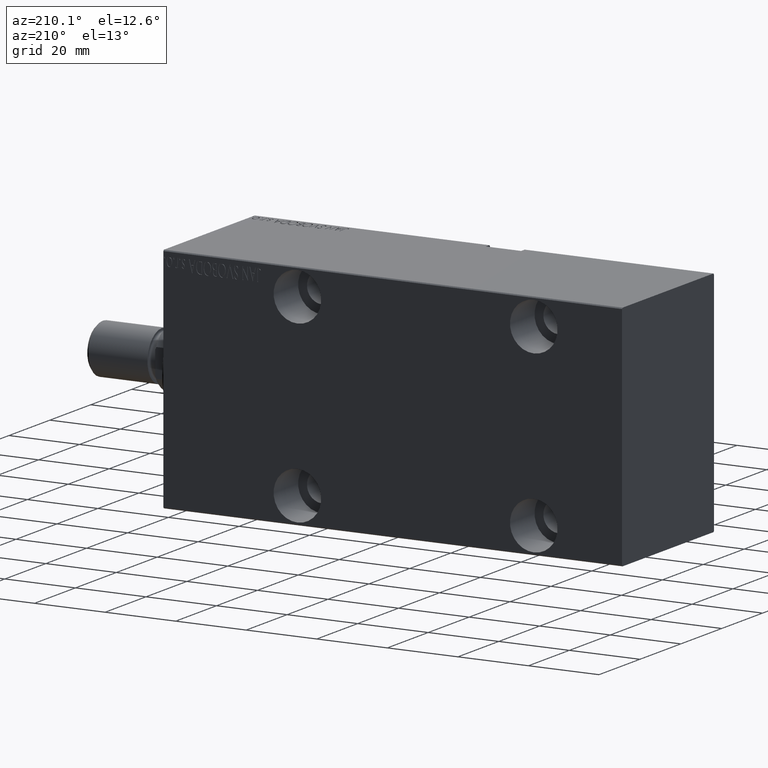
[diagram: clean part render]
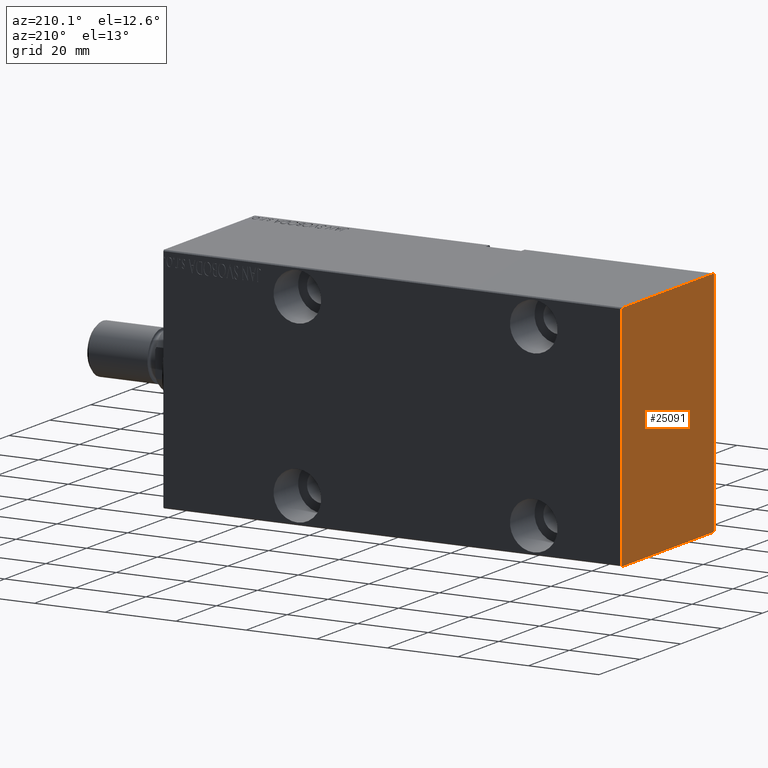
[diagram: same view with one face highlighted and labeled with its STEP entity id]
A machine part, auxiliary view. The second image highlights one B-rep face of the part: STEP entity #25091.
In plain terms, the highlighted planar face has unit normal (-1, 0, 0).
Its self-contained STEP definition (entity closure, byte-faithful):
#734 = CARTESIAN_POINT ( 'NONE',  ( 130.0000000000000000, 27.34999999999999432, -27.34999999999999432 ) ) ;
#1529 = VERTEX_POINT ( 'NONE', #42149 ) ;
#1567 = CARTESIAN_POINT ( 'NONE',  ( 130.0000000000000000, -27.34999999999999076, -27.34999999999999076 ) ) ;
#2037 = EDGE_CURVE ( 'NONE', #20394, #25659, #11572, .T. ) ;
#3293 = CARTESIAN_POINT ( 'NONE',  ( 130.0000000000000000, 22.50000000000000355, -32.19999999999999574 ) ) ;
#3453 = VERTEX_POINT ( 'NONE', #12329 ) ;
#3642 = CARTESIAN_POINT ( 'NONE',  ( 130.0000000000000000, 27.34999999999974207, 27.35000000000037446 ) ) ;
#4085 = LINE ( 'NONE', #3642, #35353 ) ;
#4581 = CARTESIAN_POINT ( 'NONE',  ( 130.0000000000000000, 22.49999999999999645, 32.50000000000000711 ) ) ;
#5531 = EDGE_CURVE ( 'NONE', #19428, #20394, #10973, .T. ) ;
#5740 = DIRECTION ( 'NONE',  ( 0.000000000000000000, -1.067522139062650425E-16, 1.000000000000000000 ) ) ;
#7762 = DIRECTION ( 'NONE',  ( 0.000000000000000000, 0.000000000000000000, -1.000000000000000000 ) ) ;
#7882 = LINE ( 'NONE', #4581, #25359 ) ;
#8790 = VECTOR ( 'NONE', #37013, 1000.000000000000114 ) ;
#10973 = LINE ( 'NONE', #33961, #8790 ) ;
#11572 = LINE ( 'NONE', #28002, #38361 ) ;
#12014 = VECTOR ( 'NONE', #31202, 1000.000000000000114 ) ;
#12329 = CARTESIAN_POINT ( 'NONE',  ( 130.0000000000000000, 22.49999999999999645, 32.20000000000000284 ) ) ;
#12770 = CARTESIAN_POINT ( 'NONE',  ( 130.0000000000000000, 22.50000000000000355, -32.50000000000000000 ) ) ;
#14244 = DIRECTION ( 'NONE',  ( 0.000000000000000000, -1.000000000000000000, -1.541976423090495633E-16 ) ) ;
#14555 = EDGE_CURVE ( 'NONE', #25659, #1529, #31604, .T. ) ;
#14865 = DIRECTION ( 'NONE',  ( 0.000000000000000000, 0.000000000000000000, -1.000000000000000000 ) ) ;
#15858 = CARTESIAN_POINT ( 'NONE',  ( 130.0000000000000000, -22.19999999999999929, 32.50000000000000000 ) ) ;
#16799 = CARTESIAN_POINT ( 'NONE',  ( 130.0000000000000000, -22.49999999999999645, -32.50000000000000000 ) ) ;
#17012 = LINE ( 'NONE', #16799, #40145 ) ;
#17134 = VECTOR ( 'NONE', #5740, 1000.000000000000000 ) ;
#17466 = DIRECTION ( 'NONE',  ( -0.000000000000000000, -0.7071067811865556774, 0.7071067811865393571 ) ) ;
#17841 = DIRECTION ( 'NONE',  ( 1.000000000000000000, 0.000000000000000000, 0.000000000000000000 ) ) ;
#18059 = PLANE ( 'NONE',  #24740 ) ;
#18063 = EDGE_CURVE ( 'NONE', #33679, #20846, #30767, .T. ) ;
#19428 = VERTEX_POINT ( 'NONE', #15858 ) ;
#20394 = VERTEX_POINT ( 'NONE', #29435 ) ;
#20846 = VERTEX_POINT ( 'NONE', #3293 ) ;
#20984 = DIRECTION ( 'NONE',  ( 0.000000000000000000, 1.000000000000000000, 0.000000000000000000 ) ) ;
#21875 = ORIENTED_EDGE ( 'NONE', *, *, #14555, .T. ) ;
#22383 = DIRECTION ( 'NONE',  ( -0.000000000000000000, 0.7071067811865474617, -0.7071067811865474617 ) ) ;
#24428 = FACE_OUTER_BOUND ( 'NONE', #24925, .T. ) ;
#24498 = VECTOR ( 'NONE', #22383, 1000.000000000000114 ) ;
#24740 = AXIS2_PLACEMENT_3D ( 'NONE', #24859, #17841, #7762 ) ;
#24859 = CARTESIAN_POINT ( 'NONE',  ( 130.0000000000000000, 0.000000000000000000, 0.000000000000000000 ) ) ;
#24925 = EDGE_LOOP ( 'NONE', ( #43285, #25882, #35208, #31338, #39958, #31199, #26154, #21875 ) ) ;
#25015 = CARTESIAN_POINT ( 'NONE',  ( 130.0000000000000000, 22.19999999999998153, -32.50000000000000000 ) ) ;
#25091 = ADVANCED_FACE ( 'NONE', ( #24428 ), #18059, .T. ) ;
#25359 = VECTOR ( 'NONE', #14244, 1000.000000000000000 ) ;
#25659 = VERTEX_POINT ( 'NONE', #42188 ) ;
#25882 = ORIENTED_EDGE ( 'NONE', *, *, #18063, .T. ) ;
#26154 = ORIENTED_EDGE ( 'NONE', *, *, #2037, .T. ) ;
#26400 = EDGE_CURVE ( 'NONE', #33245, #19428, #7882, .T. ) ;
#28002 = CARTESIAN_POINT ( 'NONE',  ( 130.0000000000000000, -22.49999999999999645, 32.50000000000000000 ) ) ;
#29435 = CARTESIAN_POINT ( 'NONE',  ( 130.0000000000000000, -22.49999999999999645, 32.20000000000001705 ) ) ;
#29626 = LINE ( 'NONE', #12770, #17134 ) ;
#30767 = LINE ( 'NONE', #734, #12014 ) ;
#31199 = ORIENTED_EDGE ( 'NONE', *, *, #5531, .T. ) ;
#31202 = DIRECTION ( 'NONE',  ( -0.000000000000000000, 0.7071067811865474617, 0.7071067811865474617 ) ) ;
#31338 = ORIENTED_EDGE ( 'NONE', *, *, #34130, .T. ) ;
#31604 = LINE ( 'NONE', #1567, #24498 ) ;
#31725 = EDGE_CURVE ( 'NONE', #1529, #33679, #17012, .T. ) ;
#33245 = VERTEX_POINT ( 'NONE', #33877 ) ;
#33465 = EDGE_CURVE ( 'NONE', #20846, #3453, #29626, .T. ) ;
#33679 = VERTEX_POINT ( 'NONE', #25015 ) ;
#33877 = CARTESIAN_POINT ( 'NONE',  ( 130.0000000000000000, 22.19999999999998863, 32.50000000000000711 ) ) ;
#33961 = CARTESIAN_POINT ( 'NONE',  ( 130.0000000000000000, -27.35000000000000497, 27.35000000000000497 ) ) ;
#34130 = EDGE_CURVE ( 'NONE', #3453, #33245, #4085, .T. ) ;
#35208 = ORIENTED_EDGE ( 'NONE', *, *, #33465, .T. ) ;
#35353 = VECTOR ( 'NONE', #17466, 1000.000000000000000 ) ;
#37013 = DIRECTION ( 'NONE',  ( 0.000000000000000000, -0.7071067811865474617, -0.7071067811865474617 ) ) ;
#38361 = VECTOR ( 'NONE', #14865, 1000.000000000000000 ) ;
#39958 = ORIENTED_EDGE ( 'NONE', *, *, #26400, .T. ) ;
#40145 = VECTOR ( 'NONE', #20984, 1000.000000000000000 ) ;
#42149 = CARTESIAN_POINT ( 'NONE',  ( 130.0000000000000000, -22.19999999999998863, -32.50000000000000000 ) ) ;
#42188 = CARTESIAN_POINT ( 'NONE',  ( 130.0000000000000000, -22.49999999999999645, -32.19999999999999574 ) ) ;
#43285 = ORIENTED_EDGE ( 'NONE', *, *, #31725, .T. ) ;